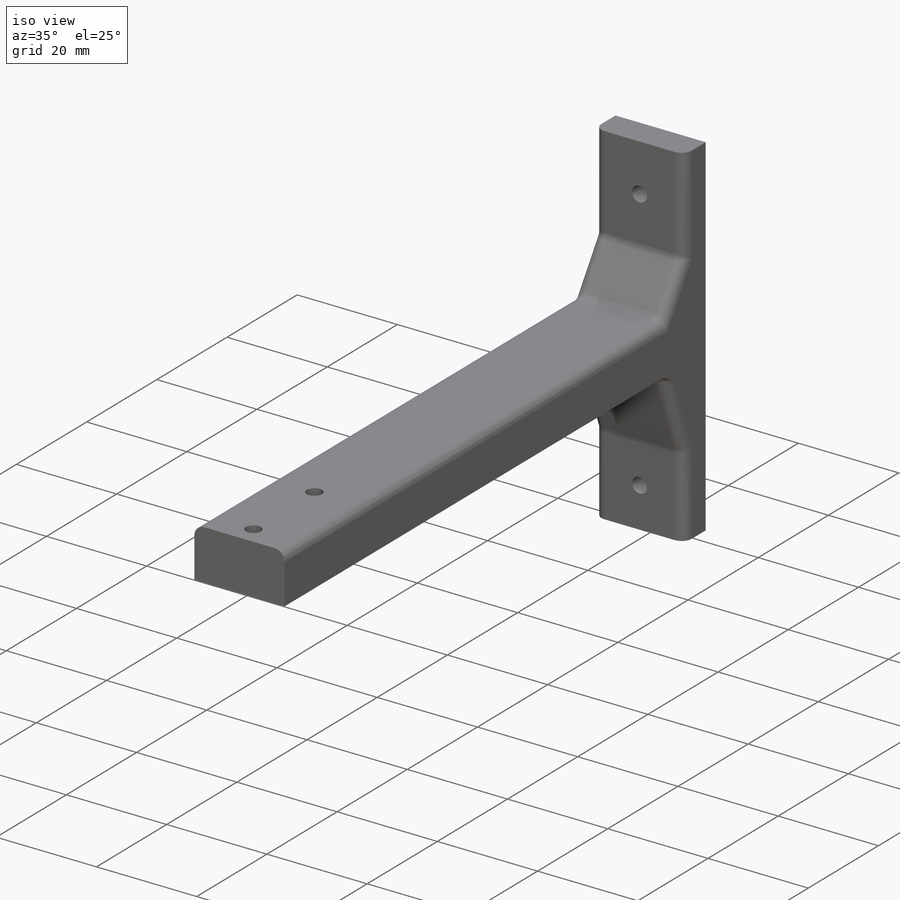
[diagram: iso view]
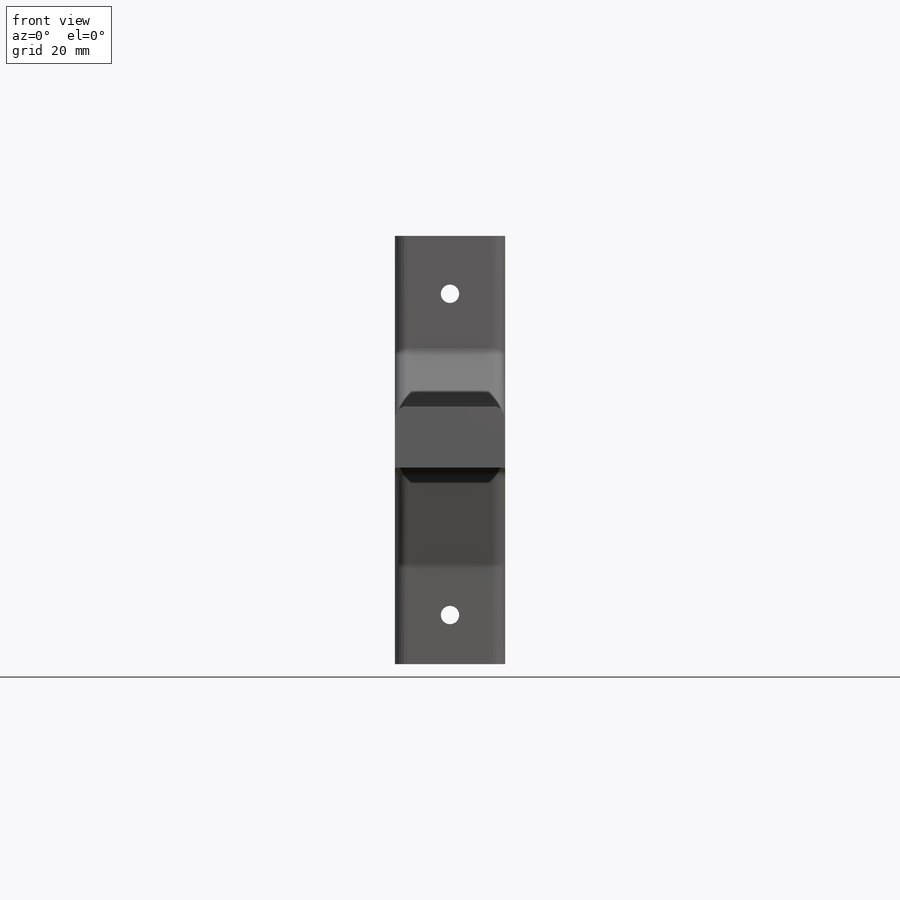
[diagram: front view]
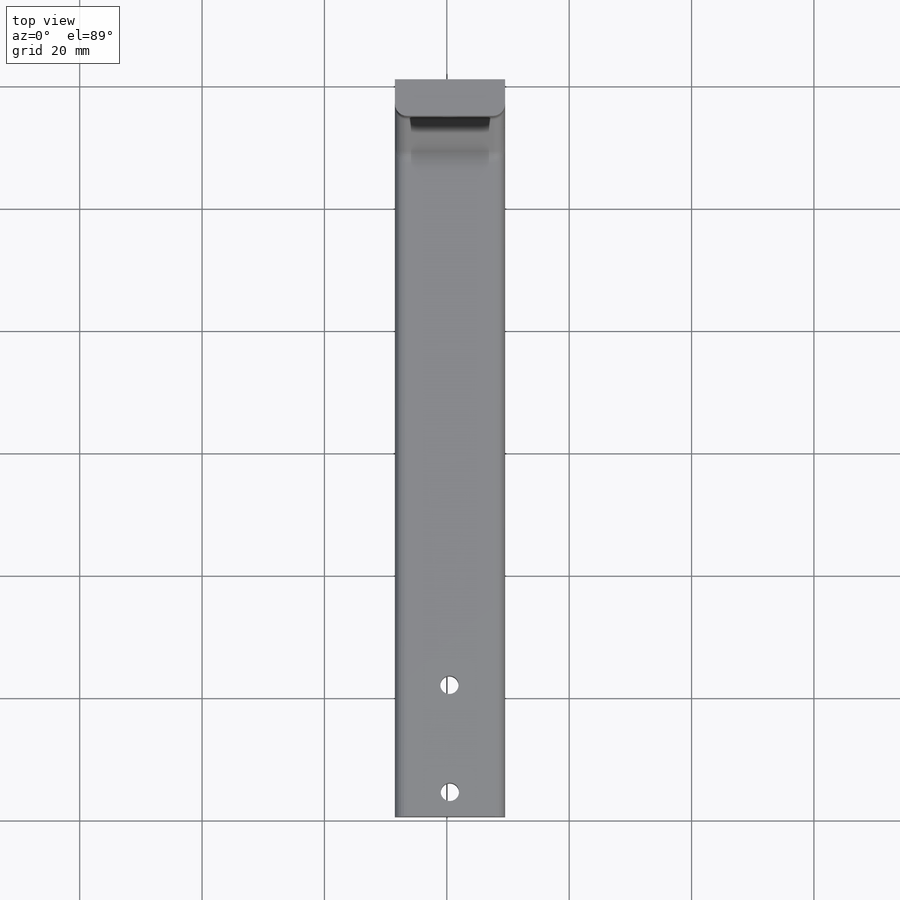
[diagram: top view]
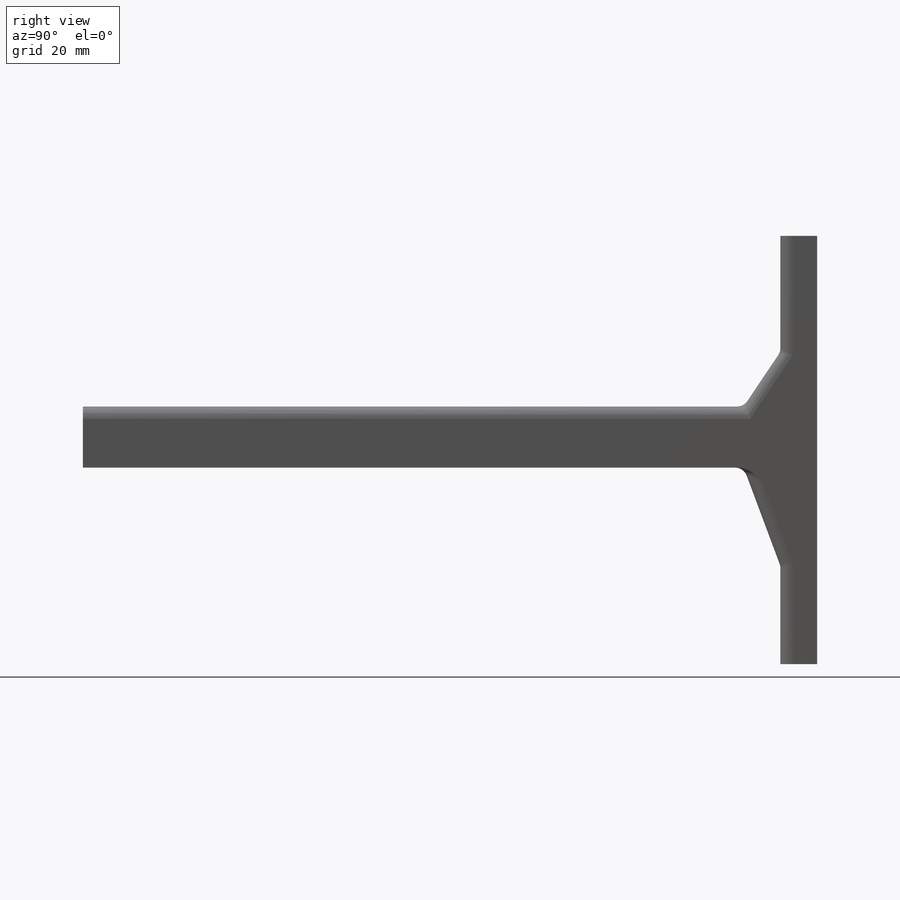
[diagram: right view]
SOLIDWORKS PART (.sldprt)
format: sldprt  version: not decoded by parser v0  size: 337,408 bytes
history: native  units: mm
features: fillet x13, sketch x5, plane x3, cut_extrude x3, extrude x2, material x1 (+10 scaffold rows collapsed)
feature tree (37):
  scaffold x10  (default folders/planes/origin — collapsed)
  material  "Material <não especificado>"
  plane  "Plano frontal"
  plane  "Plano superior"
  plane  "Plano direito"
  sketch  "Esboço1"  dims[D1=18.0mm D2=10.0mm]
  extrude  "Ressalto-extrusão1"  Depth=120mm
  sketch  "Esboço2"  dims[c1.D2=3.0mm c1.D3=3.0mm c1.D1=4.0mm c1.D4=17.5mm c1.D5=0.0mm c1.D6=~17.621984mm c2.D5=4.0mm]
  cut_extrude  "Corte-extrusão1"  Depth=120mm
  sketch  "Esboço3"  dims[D1=12.0mm]
  extrude  "Ressalto-extrusão3"  Depth=30mm
  sketch  "Esboço4"
  cut_extrude  "Corte-extrusão2"  Depth=43mm
  sketch  "Esboço5"  dims[D1=3.0mm D2=3.0mm]
  cut_extrude  "Corte-extrusão3"  Depth=30mm
  fillet  "Filete2"  Radius=2mm
  fillet  "Filete3"  Radius=2mm
  fillet  "Filete4"  Radius=2mm
  fillet  "Filete5"  Radius=2mm
  fillet  "Filete6"  Radius=2mm
  fillet  "Filete7"  Radius=2mm
  fillet  "Filete8"  Radius=2mm
  fillet  "Filete9"  Radius=2mm
  fillet  "Filete10"  Radius=2mm
  fillet  "Filete11"  Radius=2mm
  fillet  "Filete12"  Radius=2mm
  fillet  "Filete13"  Radius=2mm
  fillet  "Filete14"  Radius=2mm
decode coverage: 22 of 23 modeling features carry decoded parameters
note: ~ marks probable driven/reference dimensions
note: suppression state not decoded; provenance and decode notes live in map.json
